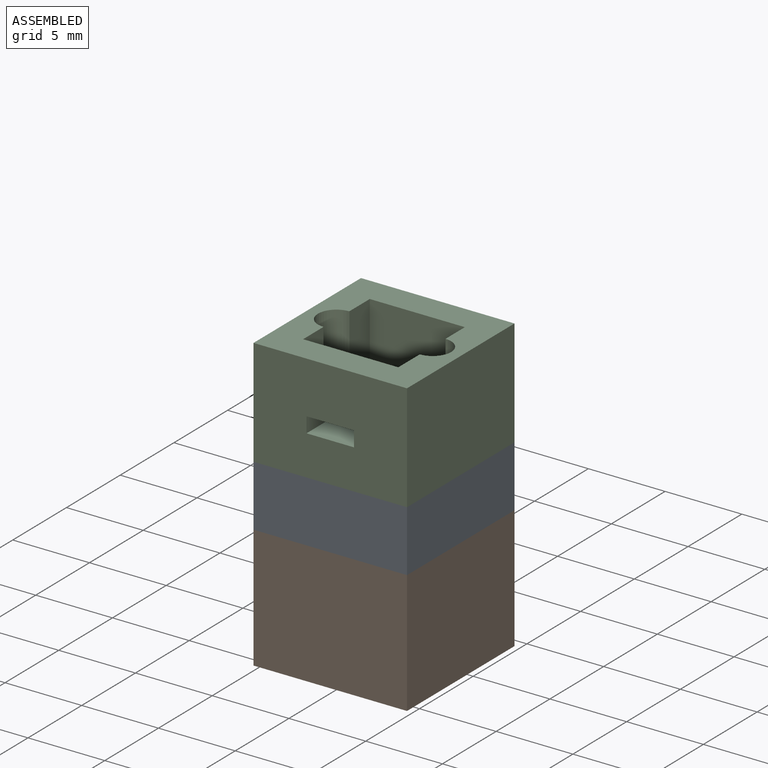
[diagram: assembled view]
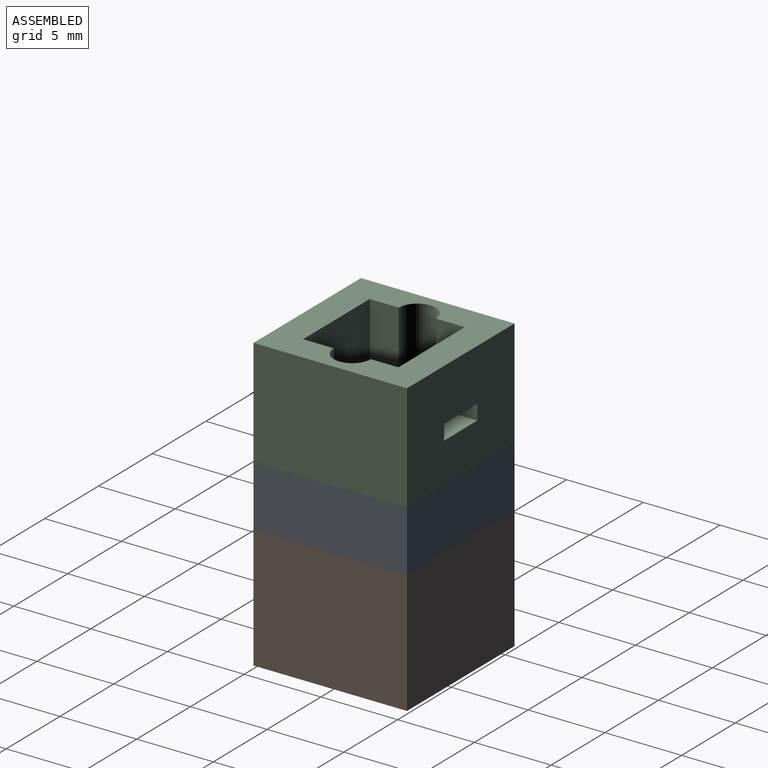
[diagram: assembled view, second angle]
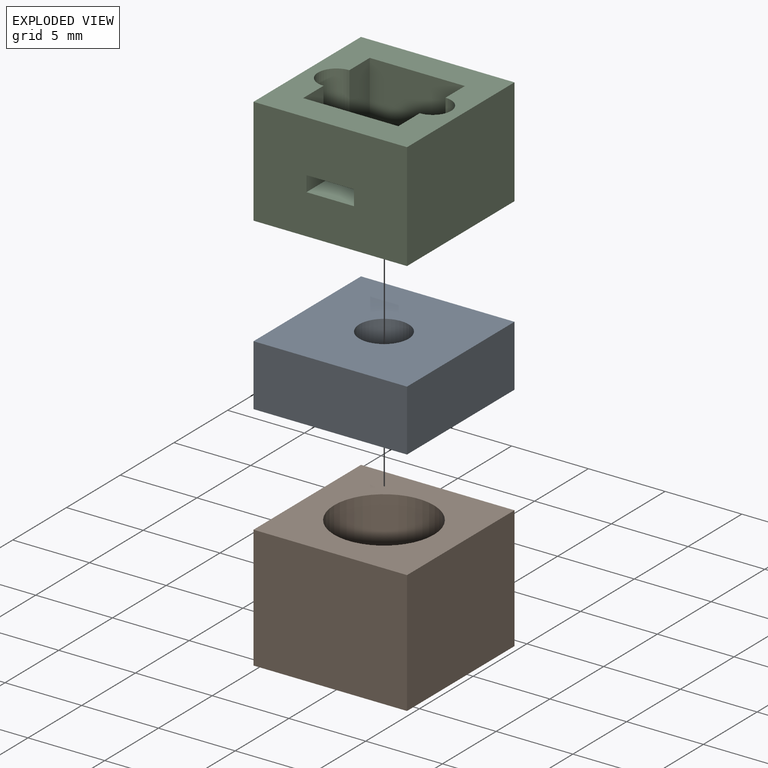
[diagram: exploded view]
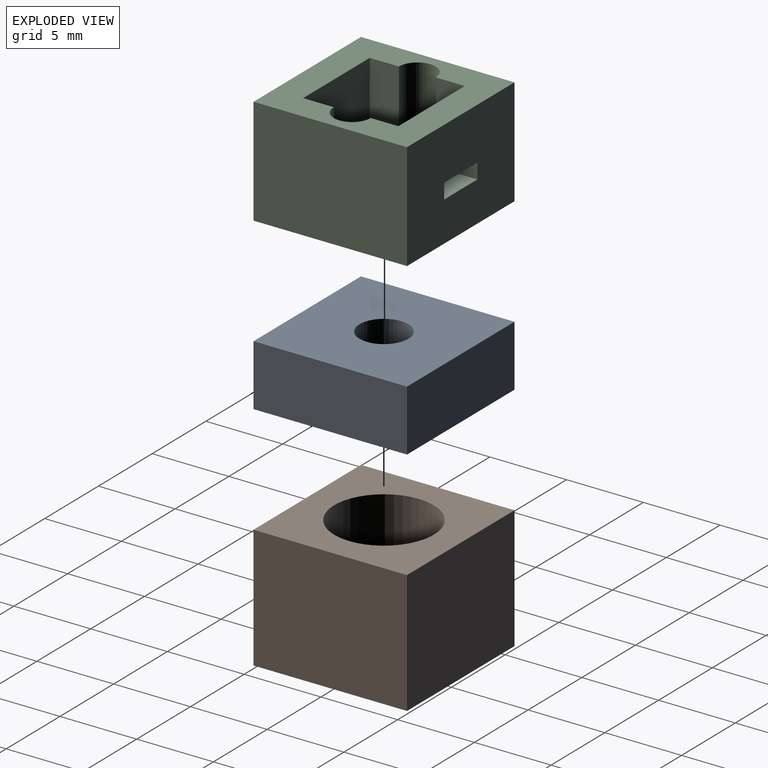
[diagram: exploded view, second angle]
ASSEMBLY  parts=3 mates=2
PART A: 7 faces, bbox 10x10x4 mm
  f0: plane 10x4mm, normal (-1,0,0), area 40mm2, adj f1,f4,f5,f6
  f1: plane 10x4mm, normal (0,-1,0), area 40mm2, adj f0,f2,f5,f6
  f2: plane 10x4mm, normal (1,0,0), area 40mm2, adj f1,f4,f5,f6
  f3: cylinder r=1.6mm len=4mm, axis (0,0,-1), area 40.2mm2, adj f5,f6
  f4: plane 10x4mm, normal (0,1,0), area 40mm2, adj f0,f2,f5,f6
  f5: plane 10x10mm, normal (0,0,1), area 92mm2, adj f0,f1,f2,f3,f4
  f6: plane 10x10mm, normal (0,0,-1), area 92mm2, adj f0,f1,f2,f3,f4
PART B: 7 faces, bbox 10x10x8 mm
  f0: plane 10x8mm, normal (-1,0,0), area 80mm2, adj f1,f4,f5,f6
  f1: plane 10x8mm, normal (0,-1,0), area 80mm2, adj f0,f2,f5,f6
  f2: plane 10x8mm, normal (1,0,0), area 80mm2, adj f1,f4,f5,f6
  f3: cylinder r=3.25mm len=8mm, axis (0,0,1), area 163.4mm2, adj f5,f6
  f4: plane 10x8mm, normal (0,1,0), area 80mm2, adj f0,f2,f5,f6
  f5: plane 10x10mm, normal (0,0,-1), area 66.8mm2, adj f0,f1,f2,f3,f4
  f6: plane 10x10mm, normal (0,0,1), area 66.8mm2, adj f0,f1,f2,f3,f4
PART C: 22 faces, bbox 10x10x7 mm
  f0: plane 10x7mm, normal (0,-1,0), area 66.9mm2, adj f4,f5,f12,f13,f18,f19,f20,f21
  f1: plane 7x6.2mm, normal (0,1,0), area 40.3mm2, adj f6,f11,f12,f13,f18,f19,f20,f21
  f2: plane 7x6.2mm, normal (0,-1,0), area 40.3mm2, adj f8,f9,f12,f13,f14,f15,f16,f17
  f3: plane 10x7mm, normal (0,1,0), area 66.9mm2, adj f4,f5,f12,f13,f14,f15,f16,f17
  f4: plane 10x7mm, normal (-1,0,0), area 70mm2, adj f0,f3,f12,f13
  f5: plane 10x7mm, normal (1,0,0), area 70mm2, adj f0,f3,f12,f13
  f6: plane 7x1.9mm, normal (1,0,0), area 13.3mm2, adj f1,f7,f12,f13
  f7: cylinder r=1.2mm len=7mm, axis (0,0,-1), area 26.4mm2, adj f6,f8,f12,f13
  f8: plane 7x1.9mm, normal (1,0,0), area 13.3mm2, adj f2,f7,f12,f13
  f9: plane 7x1.8mm, normal (-1,0,0), area 12.6mm2, adj f2,f10,f12,f13
  f10: cylinder r=1.2mm len=7mm, axis (0,0,-1), area 26.4mm2, adj f9,f11,f12,f13
  f11: plane 7x2mm, normal (-1,0,0), area 14mm2, adj f1,f10,f12,f13
  f12: plane 10x10mm, normal (0,0,1), area 57mm2, adj f0,f1,f2,f3,f4,f5,f6,f7
  f13: plane 10x10mm, normal (0,0,-1), area 57mm2, adj f0,f1,f2,f3,f4,f5,f6,f7
  f14: plane 3.1x1.9mm, normal (0,0,-1), area 5.9mm2, adj f2,f3,f15,f17
  f15: plane 1.9x1mm, normal (-1,0,0), area 1.9mm2, adj f2,f3,f14,f16
  f16: plane 3.1x1.9mm, normal (0,0,1), area 5.9mm2, adj f2,f3,f15,f17
  f17: plane 1.9x1mm, normal (1,0,0), area 1.9mm2, adj f2,f3,f14,f16
  f18: plane 1.9x1mm, normal (1,0,0), area 1.9mm2, adj f0,f1,f19,f21
  f19: plane 3.1x1.9mm, normal (0,0,1), area 5.9mm2, adj f0,f1,f18,f20
  f20: plane 1.9x1mm, normal (-1,0,0), area 1.9mm2, adj f0,f1,f19,f21
  f21: plane 3.1x1.9mm, normal (0,0,-1), area 5.9mm2, adj f0,f1,f18,f20
PLACE A t=(-2.66,35.04,5.77)mm
PLACE B t=(13.53,-0.29,5.77)mm
PLACE C t=(34.23,15.82,9.77)mm
MATE fastened A.f5 <-> C.f13  axis (0,0,1) through (16.52,1.68,9.77)mm
MATE fastened B.f6 <-> A.f6  axis (0,0,1) through (16.52,1.68,5.77)mm
